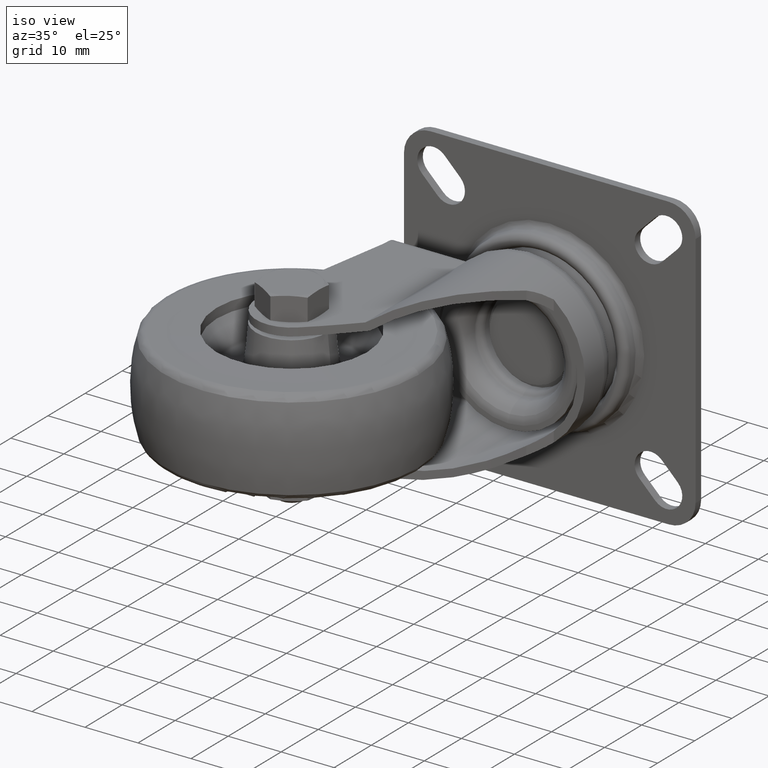
[diagram: clean part render]
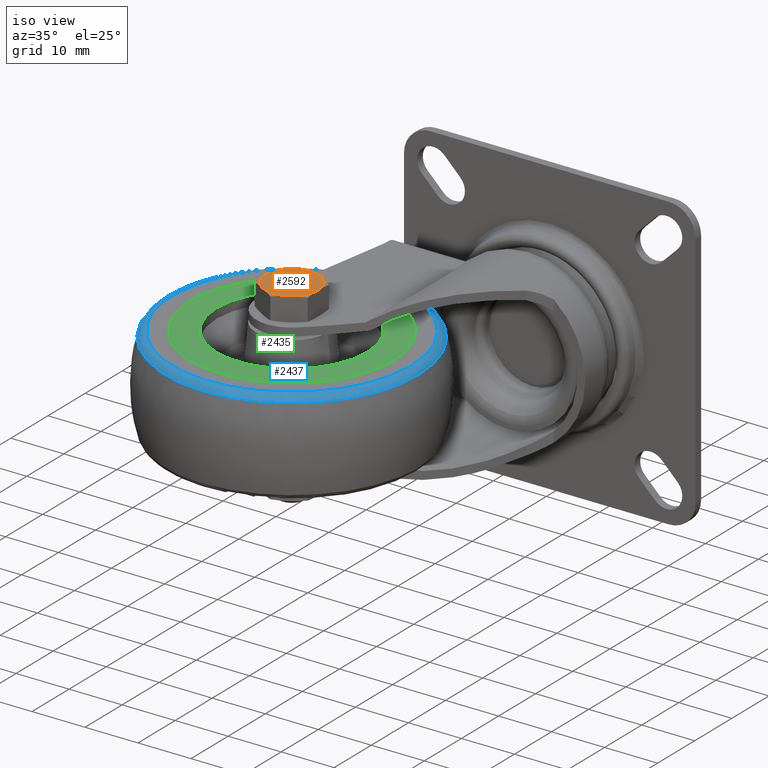
[diagram: same view with three faces highlighted in distinct colors, each labeled with its STEP entity id]
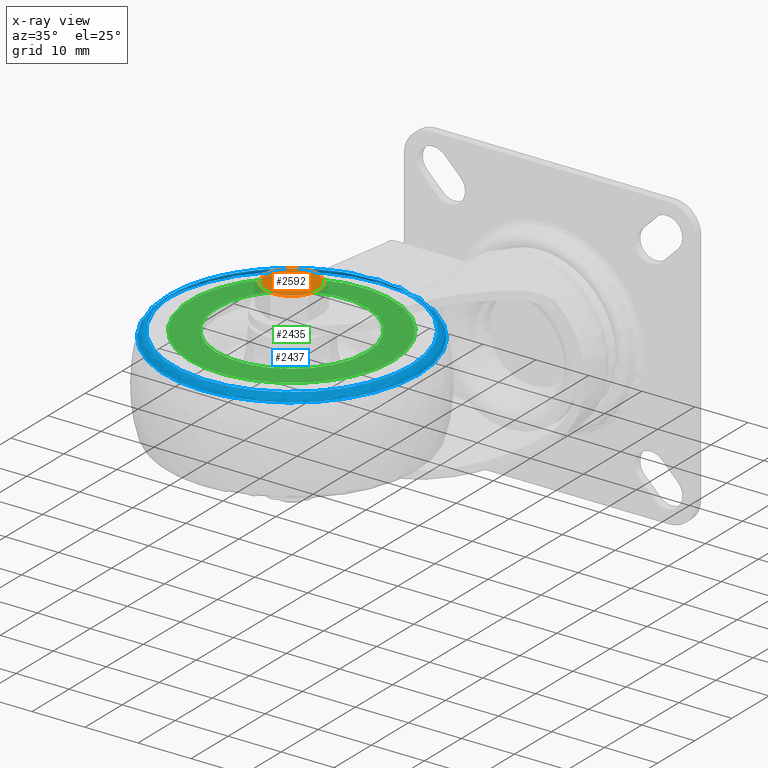
[diagram: x-ray of the same camera — body ghosted, the three highlighted faces saturated]
A machine part, iso view with three faces highlighted in distinct colors.
The next image is the same camera in x-ray (body ghosted, the three faces saturated) — at least one of them is partly hidden behind the body in this view.
Their STEP definitions:

[orange] entity #2592 — the highlighted planar face has unit normal (0, 0, -1).
#640=FACE_OUTER_BOUND('',#903,.T.);
#903=EDGE_LOOP('',(#2182,#2183,#2184,#2185,#2186,#2187));
#1047=CIRCLE('',#2910,5.);
#1048=CIRCLE('',#2912,5.);
#1049=CIRCLE('',#2914,5.);
#1050=CIRCLE('',#2916,5.);
#1051=CIRCLE('',#2918,5.);
#1052=CIRCLE('',#2919,5.);
#1245=VERTEX_POINT('',#4475);
#1251=VERTEX_POINT('',#4500);
#1256=VERTEX_POINT('',#4531);
#1262=VERTEX_POINT('',#4556);
#1265=VERTEX_POINT('',#4577);
#1267=VERTEX_POINT('',#4600);
#1576=EDGE_CURVE('',#1256,#1267,#1047,.T.);
#1577=EDGE_CURVE('',#1267,#1251,#1048,.T.);
#1578=EDGE_CURVE('',#1245,#1265,#1049,.T.);
#1579=EDGE_CURVE('',#1262,#1256,#1050,.T.);
#1580=EDGE_CURVE('',#1265,#1262,#1051,.T.);
#1581=EDGE_CURVE('',#1251,#1245,#1052,.T.);
#2182=ORIENTED_EDGE('',*,*,#1579,.F.);
#2183=ORIENTED_EDGE('',*,*,#1580,.F.);
#2184=ORIENTED_EDGE('',*,*,#1578,.F.);
#2185=ORIENTED_EDGE('',*,*,#1581,.F.);
#2186=ORIENTED_EDGE('',*,*,#1577,.F.);
#2187=ORIENTED_EDGE('',*,*,#1576,.F.);
#2251=PLANE('',#2917);
#2592=ADVANCED_FACE('',(#640),#2251,.F.);
#2910=AXIS2_PLACEMENT_3D('',#4651,#3634,#3635);
#2912=AXIS2_PLACEMENT_3D('',#4653,#3638,#3639);
#2914=AXIS2_PLACEMENT_3D('',#4655,#3642,#3643);
#2916=AXIS2_PLACEMENT_3D('',#4657,#3646,#3647);
#2917=AXIS2_PLACEMENT_3D('',#4658,#3648,#3649);
#2918=AXIS2_PLACEMENT_3D('',#4659,#3650,#3651);
#2919=AXIS2_PLACEMENT_3D('',#4660,#3652,#3653);
#3634=DIRECTION('center_axis',(0.,0.,-1.));
#3635=DIRECTION('ref_axis',(1.,0.,0.));
#3638=DIRECTION('center_axis',(0.,0.,-1.));
#3639=DIRECTION('ref_axis',(1.,0.,0.));
#3642=DIRECTION('center_axis',(0.,0.,-1.));
#3643=DIRECTION('ref_axis',(1.,0.,0.));
#3646=DIRECTION('center_axis',(0.,0.,-1.));
#3647=DIRECTION('ref_axis',(1.,0.,0.));
#3648=DIRECTION('center_axis',(0.,0.,-1.));
#3649=DIRECTION('ref_axis',(1.,0.,0.));
#3650=DIRECTION('center_axis',(0.,0.,-1.));
#3651=DIRECTION('ref_axis',(1.,0.,0.));
#3652=DIRECTION('center_axis',(0.,0.,-1.));
#3653=DIRECTION('ref_axis',(1.,0.,0.));
#4475=CARTESIAN_POINT('',(2.5,4.33012701892219,17.25));
#4500=CARTESIAN_POINT('',(-2.5,4.33012701892219,17.25));
#4531=CARTESIAN_POINT('',(-2.5,-4.3301270189222,17.25));
#4556=CARTESIAN_POINT('',(2.5,-4.3301270189222,17.25));
#4577=CARTESIAN_POINT('',(5.,-1.37772775104364E-15,17.25));
#4600=CARTESIAN_POINT('',(-5.,-1.37772775104364E-15,17.25));
#4651=CARTESIAN_POINT('Origin',(0.,-1.37772764904077E-15,17.25));
#4653=CARTESIAN_POINT('Origin',(0.,-1.37772764904077E-15,17.25));
#4655=CARTESIAN_POINT('Origin',(0.,-1.37772764904077E-15,17.25));
#4657=CARTESIAN_POINT('Origin',(0.,-1.37772764904077E-15,17.25));
#4658=CARTESIAN_POINT('Origin',(0.,-1.37772764904077E-15,17.25));
#4659=CARTESIAN_POINT('Origin',(0.,-1.37772764904077E-15,17.25));
#4660=CARTESIAN_POINT('Origin',(0.,-1.37772764904077E-15,17.25));

[blue] entity #2437 — the highlighted toroidal blend (fillet) surface has major radius 22.4955 mm and minor (blend) radius 1.5 mm.
#273=TOROIDAL_SURFACE('',#2624,22.495454169735,1.5);
#391=FACE_BOUND('',#666,.T.);
#485=FACE_OUTER_BOUND('',#665,.T.);
#665=EDGE_LOOP('',(#1604,#1605));
#666=EDGE_LOOP('',(#1606));
#917=CIRCLE('',#2623,22.495454169735);
#918=CIRCLE('',#2625,23.942583365908);
#919=CIRCLE('',#2626,23.942583365908);
#1064=VERTEX_POINT('',#3692);
#1065=VERTEX_POINT('',#3695);
#1066=VERTEX_POINT('',#3696);
#1287=EDGE_CURVE('',#1064,#1064,#917,.T.);
#1288=EDGE_CURVE('',#1065,#1066,#918,.T.);
#1289=EDGE_CURVE('',#1066,#1065,#919,.T.);
#1604=ORIENTED_EDGE('',*,*,#1288,.T.);
#1605=ORIENTED_EDGE('',*,*,#1289,.T.);
#1606=ORIENTED_EDGE('',*,*,#1287,.F.);
#2437=ADVANCED_FACE('',(#485,#391),#273,.T.);
#2623=AXIS2_PLACEMENT_3D('',#3693,#2968,#2969);
#2624=AXIS2_PLACEMENT_3D('',#3694,#2970,#2971);
#2625=AXIS2_PLACEMENT_3D('',#3697,#2972,#2973);
#2626=AXIS2_PLACEMENT_3D('',#3698,#2974,#2975);
#2968=DIRECTION('center_axis',(0.,0.,1.));
#2969=DIRECTION('ref_axis',(1.,0.,0.));
#2970=DIRECTION('center_axis',(0.,0.,1.));
#2971=DIRECTION('ref_axis',(1.,0.,0.));
#2972=DIRECTION('center_axis',(0.,0.,1.));
#2973=DIRECTION('ref_axis',(1.,0.,0.));
#2974=DIRECTION('center_axis',(0.,0.,1.));
#2975=DIRECTION('ref_axis',(1.,0.,0.));
#3692=CARTESIAN_POINT('',(22.495454169735,0.,9.));
#3693=CARTESIAN_POINT('Origin',(0.,0.,9.));
#3694=CARTESIAN_POINT('Origin',(0.,0.,7.5));
#3695=CARTESIAN_POINT('',(23.942583365908,0.,7.89473673452561));
#3696=CARTESIAN_POINT('',(-23.942583365908,0.,7.89473673452561));
#3697=CARTESIAN_POINT('Origin',(0.,0.,7.89473673452561));
#3698=CARTESIAN_POINT('Origin',(0.,0.,7.89473673452561));

[green] entity #2435 — the highlighted conical surface has half-angle 88.843 deg.
#302=CONICAL_SURFACE('',#2620,14.1999999999998,88.8426669318689);
#389=FACE_BOUND('',#662,.T.);
#483=FACE_OUTER_BOUND('',#661,.T.);
#661=EDGE_LOOP('',(#1600));
#662=EDGE_LOOP('',(#1601));
#915=CIRCLE('',#2619,14.1999999999998);
#916=CIRCLE('',#2621,19.1499999999996);
#1062=VERTEX_POINT('',#3686);
#1063=VERTEX_POINT('',#3689);
#1285=EDGE_CURVE('',#1062,#1062,#915,.T.);
#1286=EDGE_CURVE('',#1063,#1063,#916,.T.);
#1600=ORIENTED_EDGE('',*,*,#1286,.T.);
#1601=ORIENTED_EDGE('',*,*,#1285,.F.);
#2435=ADVANCED_FACE('',(#483,#389),#302,.T.);
#2619=AXIS2_PLACEMENT_3D('',#3687,#2960,#2961);
#2620=AXIS2_PLACEMENT_3D('',#3688,#2962,#2963);
#2621=AXIS2_PLACEMENT_3D('',#3690,#2964,#2965);
#2960=DIRECTION('center_axis',(0.,0.,1.));
#2961=DIRECTION('ref_axis',(1.,0.,0.));
#2962=DIRECTION('center_axis',(0.,0.,-1.));
#2963=DIRECTION('ref_axis',(-1.,0.,0.));
#2964=DIRECTION('center_axis',(0.,0.,1.));
#2965=DIRECTION('ref_axis',(1.,0.,0.));
#3686=CARTESIAN_POINT('',(14.1999999999998,0.,9.10000000000014));
#3687=CARTESIAN_POINT('Origin',(0.,0.,9.10000000000014));
#3688=CARTESIAN_POINT('Origin',(0.,0.,9.10000000000014));
#3689=CARTESIAN_POINT('',(19.1499999999996,0.,9.));
#3690=CARTESIAN_POINT('Origin',(0.,0.,9.));